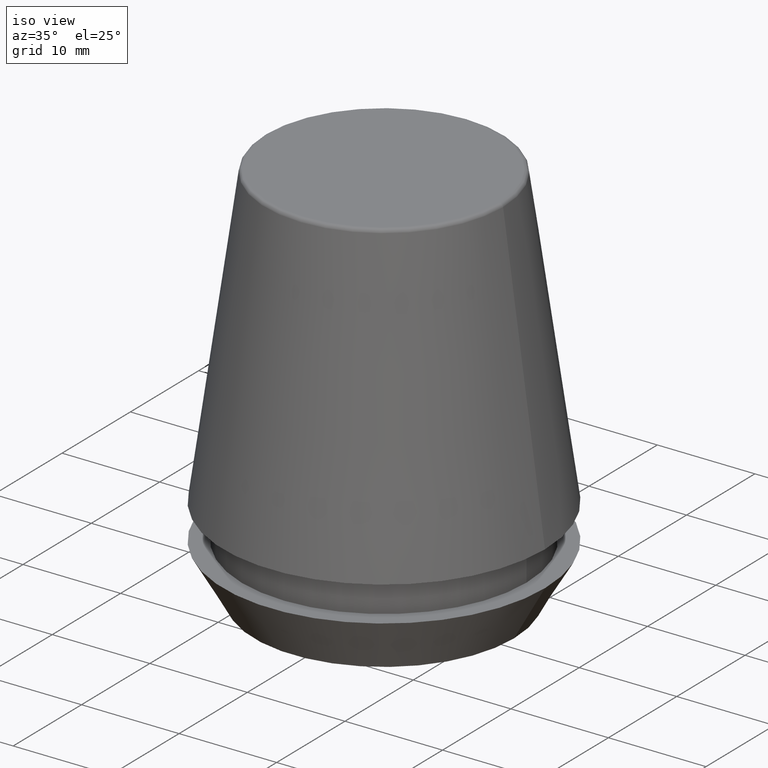
[diagram: clean part render]
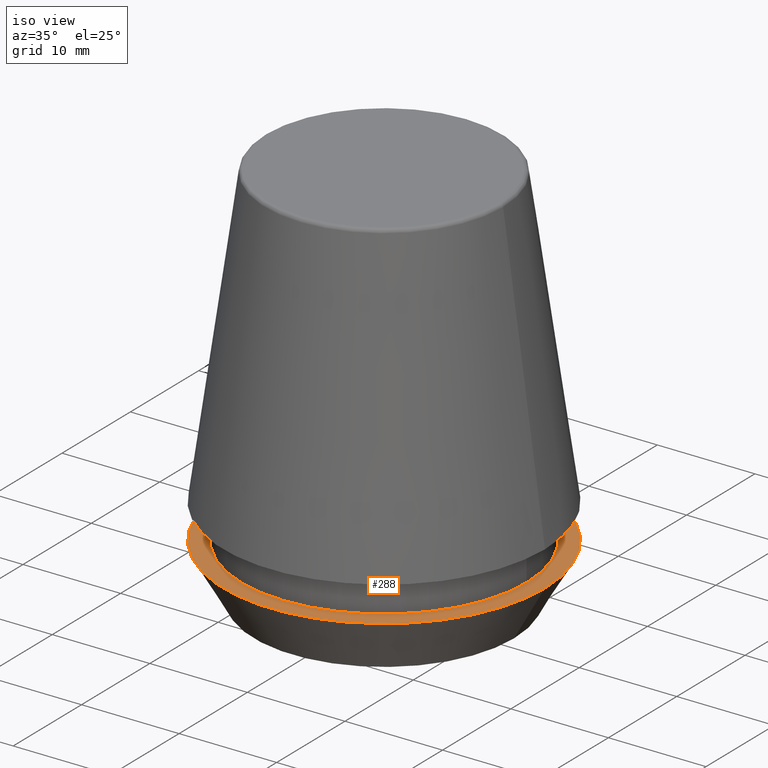
[diagram: same view with one face highlighted and labeled with its STEP entity id]
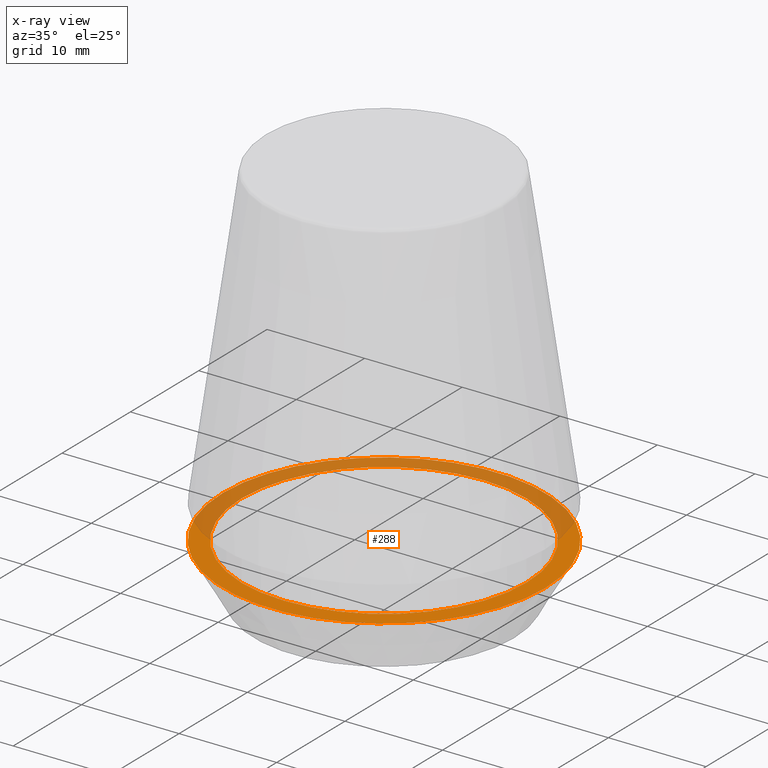
[diagram: x-ray of the same camera — body ghosted, the highlighted face saturated]
A machine part, iso view. The second image highlights one B-rep face of the part: STEP entity #288.
The next image is the same camera in x-ray: the body ghosted, the highlighted face saturated — about 46% of this face is hidden behind the body in this view.
In plain terms, the highlighted planar face has unit normal (0, 0, -1).
Its self-contained STEP definition (entity closure, byte-faithful):
#4 = EDGE_CURVE ( 'NONE', #188, #385, #56, .T. ) ;
#7 = VERTEX_POINT ( 'NONE', #141 ) ;
#9 = DIRECTION ( 'NONE',  ( -0.0000000000000000000, -0.0000000000000000000, 1.000000000000000000 ) ) ;
#18 = ORIENTED_EDGE ( 'NONE', *, *, #48, .F. ) ;
#25 = EDGE_CURVE ( 'NONE', #385, #188, #186, .T. ) ;
#30 = ORIENTED_EDGE ( 'NONE', *, *, #4, .T. ) ;
#34 = CARTESIAN_POINT ( 'NONE',  ( -14.60000000000000000, 1.787984326755135800E-015, 5.500000000000005300 ) ) ;
#39 = DIRECTION ( 'NONE',  ( -0.0000000000000000000, -0.0000000000000000000, 1.000000000000000000 ) ) ;
#48 = EDGE_CURVE ( 'NONE', #7, #108, #387, .T. ) ;
#56 = CIRCLE ( 'NONE', #283, 16.50000000000000000 ) ;
#67 = CARTESIAN_POINT ( 'NONE',  ( -16.50000000000000000, 2.020667218593133100E-015, 5.500000000000005300 ) ) ;
#70 = EDGE_CURVE ( 'NONE', #108, #7, #293, .T. ) ;
#71 = FACE_BOUND ( 'NONE', #123, .T. ) ;
#83 = DIRECTION ( 'NONE',  ( -0.0000000000000000000, -0.0000000000000000000, 1.000000000000000000 ) ) ;
#86 = DIRECTION ( 'NONE',  ( 1.000000000000000000, 0.0000000000000000000, 0.0000000000000000000 ) ) ;
#91 = DIRECTION ( 'NONE',  ( -1.000000000000000000, 0.0000000000000000000, -0.0000000000000000000 ) ) ;
#108 = VERTEX_POINT ( 'NONE', #34 ) ;
#119 = CARTESIAN_POINT ( 'NONE',  ( 0.0000000000000000000, 16.50000000000000000, 5.500000000000002700 ) ) ;
#123 = EDGE_LOOP ( 'NONE', ( #18, #265 ) ) ;
#133 = CARTESIAN_POINT ( 'NONE',  ( 0.0000000000000000000, 0.0000000000000000000, 5.500000000000005300 ) ) ;
#141 = CARTESIAN_POINT ( 'NONE',  ( 14.60000000000000000, 0.0000000000000000000, 5.500000000000005300 ) ) ;
#143 = AXIS2_PLACEMENT_3D ( 'NONE', #119, #332, #91 ) ;
#159 = EDGE_LOOP ( 'NONE', ( #30, #375 ) ) ;
#176 = PLANE ( 'NONE',  #143 ) ;
#186 = CIRCLE ( 'NONE', #245, 16.50000000000000000 ) ;
#188 = VERTEX_POINT ( 'NONE', #330 ) ;
#199 = AXIS2_PLACEMENT_3D ( 'NONE', #268, #39, #275 ) ;
#235 = AXIS2_PLACEMENT_3D ( 'NONE', #133, #9, #253 ) ;
#245 = AXIS2_PLACEMENT_3D ( 'NONE', #371, #257, #281 ) ;
#253 = DIRECTION ( 'NONE',  ( 1.000000000000000000, 0.0000000000000000000, 0.0000000000000000000 ) ) ;
#257 = DIRECTION ( 'NONE',  ( -0.0000000000000000000, -0.0000000000000000000, 1.000000000000000000 ) ) ;
#265 = ORIENTED_EDGE ( 'NONE', *, *, #70, .F. ) ;
#268 = CARTESIAN_POINT ( 'NONE',  ( 0.0000000000000000000, 0.0000000000000000000, 5.500000000000005300 ) ) ;
#275 = DIRECTION ( 'NONE',  ( 1.000000000000000000, 0.0000000000000000000, 0.0000000000000000000 ) ) ;
#281 = DIRECTION ( 'NONE',  ( 1.000000000000000000, 0.0000000000000000000, 0.0000000000000000000 ) ) ;
#283 = AXIS2_PLACEMENT_3D ( 'NONE', #322, #83, #86 ) ;
#288 = ADVANCED_FACE ( 'NONE', ( #71, #313 ), #176, .F. ) ;
#293 = CIRCLE ( 'NONE', #199, 14.60000000000000000 ) ;
#313 = FACE_OUTER_BOUND ( 'NONE', #159, .T. ) ;
#322 = CARTESIAN_POINT ( 'NONE',  ( 0.0000000000000000000, 0.0000000000000000000, 5.500000000000005300 ) ) ;
#330 = CARTESIAN_POINT ( 'NONE',  ( 16.50000000000000000, 0.0000000000000000000, 5.500000000000005300 ) ) ;
#332 = DIRECTION ( 'NONE',  ( 0.0000000000000000000, 0.0000000000000000000, -1.000000000000000000 ) ) ;
#371 = CARTESIAN_POINT ( 'NONE',  ( 0.0000000000000000000, 0.0000000000000000000, 5.500000000000005300 ) ) ;
#375 = ORIENTED_EDGE ( 'NONE', *, *, #25, .T. ) ;
#385 = VERTEX_POINT ( 'NONE', #67 ) ;
#387 = CIRCLE ( 'NONE', #235, 14.60000000000000000 ) ;